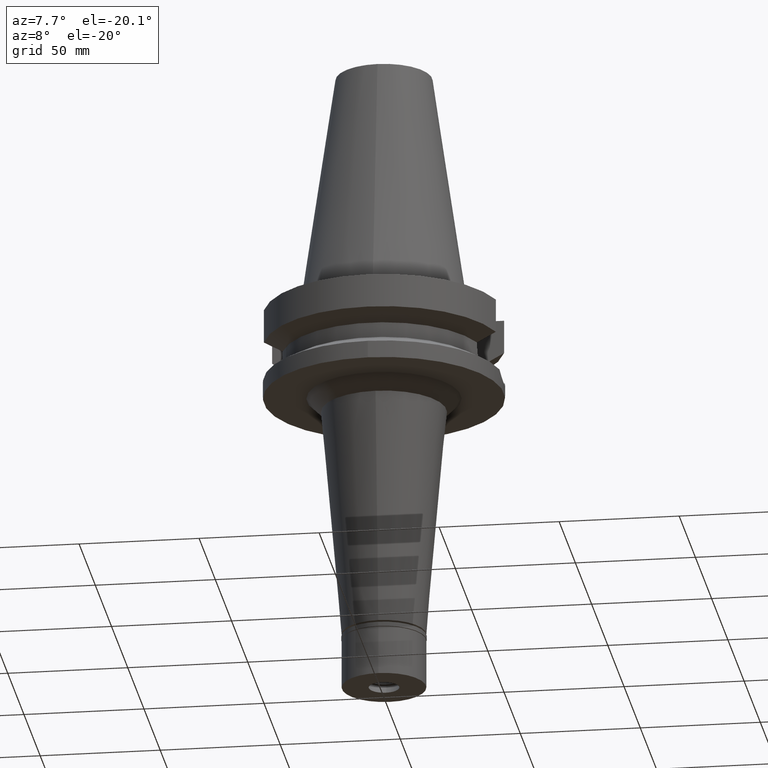
[diagram: clean part render]
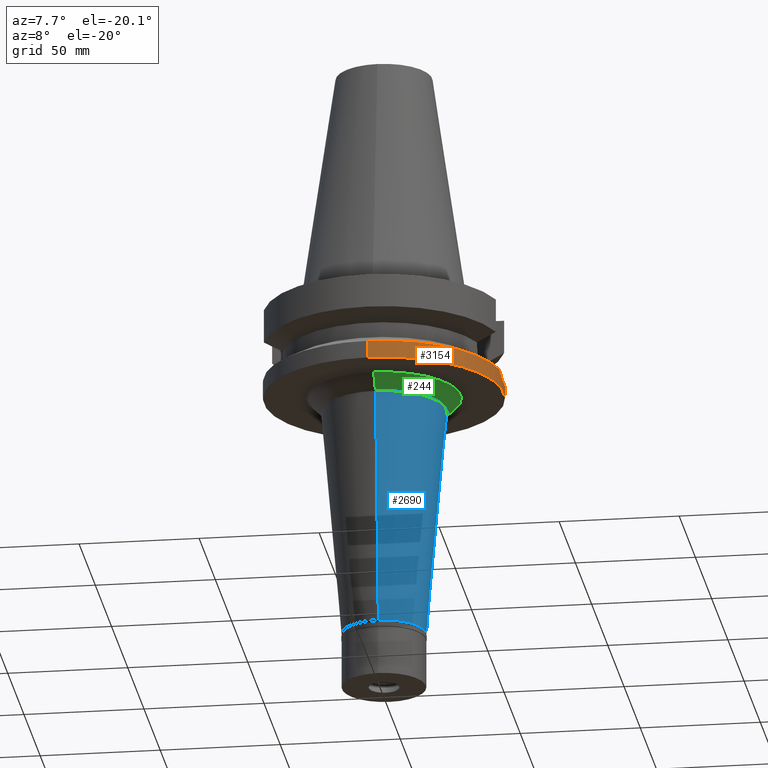
[diagram: same view with three faces highlighted in distinct colors, each labeled with its STEP entity id]
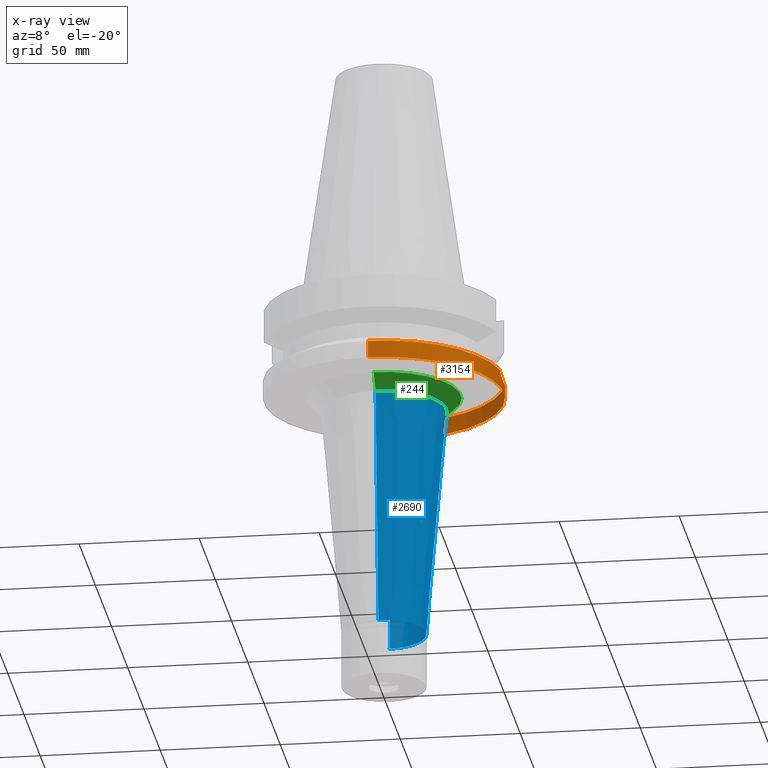
[diagram: x-ray of the same camera — body ghosted, the three highlighted faces saturated]
A machine part, auxiliary view with three faces highlighted in distinct colors.
The next image is the same camera in x-ray (body ghosted, the three faces saturated) — at least one of them is partly hidden behind the body in this view.
Their STEP definitions:

[orange] entity #3154 — the highlighted cylindrical surface (partial cylindrical patch) has radius 50 mm, axis along (0, 0, -1).
#23 = DIRECTION ( 'NONE',  ( 0.0000000000000000000, 0.0000000000000000000, -1.000000000000000000 ) ) ;
#179 = DIRECTION ( 'NONE',  ( 0.0000000000000000000, -1.000000000000000000, 0.0000000000000000000 ) ) ;
#183 = CARTESIAN_POINT ( 'NONE',  ( 49.79170874925391388, 4.559128567781159269, -33.16402800634921988 ) ) ;
#214 = CARTESIAN_POINT ( 'NONE',  ( 49.80628532616984927, 4.396934166540497735, -33.22451764730804769 ) ) ;
#223 = CARTESIAN_POINT ( 'NONE',  ( 0.0000000000000000000, 2.630602556908000006E-14, 114.8050000000000068 ) ) ;
#261 = CARTESIAN_POINT ( 'NONE',  ( 49.71771244289641345, -5.301720186373863442, -32.85659238552152317 ) ) ;
#279 = CARTESIAN_POINT ( 'NONE',  ( 49.86088866506666051, -3.802344464114768563, -33.45151161014790375 ) ) ;
#309 = CARTESIAN_POINT ( 'NONE',  ( 49.66531577332079905, -5.772453007953611603, -32.63570655782157814 ) ) ;
#327 = CARTESIAN_POINT ( 'NONE',  ( 0.0000000000000000000, 0.0000000000000000000, -30.73730776426999967 ) ) ;
#334 = CARTESIAN_POINT ( 'NONE',  ( 0.0000000000000000000, 50.00000000000000000, -30.73730776426999967 ) ) ;
#360 = AXIS2_PLACEMENT_3D ( 'NONE', #327, #853, #1836 ) ;
#377 = VERTEX_POINT ( 'NONE', #1843 ) ;
#378 = CARTESIAN_POINT ( 'NONE',  ( 0.0000000000000000000, 50.00000000000000000, -30.73730776426999967 ) ) ;
#380 = ORIENTED_EDGE ( 'NONE', *, *, #789, .T. ) ;
#412 = EDGE_CURVE ( 'NONE', #2607, #1108, #1620, .T. ) ;
#432 = AXIS2_PLACEMENT_3D ( 'NONE', #500, #23, #1290 ) ;
#440 = ORIENTED_EDGE ( 'NONE', *, *, #2488, .F. ) ;
#457 = CARTESIAN_POINT ( 'NONE',  ( 49.90869642992999644, 3.032807478770483733, -33.64331436784429741 ) ) ;
#500 = CARTESIAN_POINT ( 'NONE',  ( 0.0000000000000000000, 0.0000000000000000000, -30.73730776426999967 ) ) ;
#573 = EDGE_CURVE ( 'NONE', #659, #1108, #578, .T. ) ;
#578 = CIRCLE ( 'NONE', #1921, 50.00000000000000000 ) ;
#659 = VERTEX_POINT ( 'NONE', #921 ) ;
#669 = CARTESIAN_POINT ( 'NONE',  ( 49.79347438492523281, 4.539752812139063565, -33.17136368397431312 ) ) ;
#729 = CARTESIAN_POINT ( 'NONE',  ( 0.0000000000000000000, 2.630602556908000006E-14, -38.00000000000000000 ) ) ;
#732 = CARTESIAN_POINT ( 'NONE',  ( 49.98260905406998944, 1.500665618714346783, -33.93573820485861603 ) ) ;
#739 = ORIENTED_EDGE ( 'NONE', *, *, #2674, .T. ) ;
#765 = CARTESIAN_POINT ( 'NONE',  ( 49.78562820799655242, -4.625197376518185521, -33.13877319686051948 ) ) ;
#789 = EDGE_CURVE ( 'NONE', #2607, #1013, #2791, .T. ) ;
#836 = EDGE_LOOP ( 'NONE', ( #1416, #739, #1157, #1103, #380, #1376, #440 ) ) ;
#853 = DIRECTION ( 'NONE',  ( 0.0000000000000000000, 0.0000000000000000000, -1.000000000000000000 ) ) ;
#921 = CARTESIAN_POINT ( 'NONE',  ( 0.0000000000000000000, -50.00000000000000000, -38.00000000000000000 ) ) ;
#972 = CARTESIAN_POINT ( 'NONE',  ( 49.93043543703001319, 2.648726358657352620, -33.73005955321940519 ) ) ;
#1013 = VERTEX_POINT ( 'NONE', #1548 ) ;
#1018 = CARTESIAN_POINT ( 'NONE',  ( 49.78971523552941392, -4.580896940923952165, -33.15574469000484470 ) ) ;
#1032 = AXIS2_PLACEMENT_3D ( 'NONE', #223, #3160, #179 ) ;
#1036 = CARTESIAN_POINT ( 'NONE',  ( 50.00000025974998863, -0.7410656247097997529, -34.00000000000000000 ) ) ;
#1052 = CARTESIAN_POINT ( 'NONE',  ( 49.78849615496763192, -4.594160770994337284, -33.15068097424932603 ) ) ;
#1103 = ORIENTED_EDGE ( 'NONE', *, *, #412, .F. ) ;
#1106 = B_SPLINE_CURVE_WITH_KNOTS ( 'NONE', 3,
 ( #1451, #2910, #2024, #1765, #309, #261, #2283, #2436, #2970, #1259, #765, #1052, #1018, #1742, #2035, #279, #2249, #1276, #1036, #1782 ),
 .UNSPECIFIED., .F., .F.,
 ( 4, 2, 2, 2, 1, 1, 1, 1, 2, 2, 2, 4 ),
 ( 0.0000000000000000000, 0.2499999999999940048, 0.3749999999999915623, 0.4374999999999900635, 0.4687499999999891753, 0.4843749999999881206, 0.4921874999999883427, 0.4960937499999882871, 0.4980468749999882316, 0.4999999999999881206, 0.7499999999999941158, 1.000000000000000000 ),
 .UNSPECIFIED. ) ;
#1108 = VERTEX_POINT ( 'NONE', #3126 ) ;
#1157 = ORIENTED_EDGE ( 'NONE', *, *, #573, .T. ) ;
#1241 = CARTESIAN_POINT ( 'NONE',  ( 49.49360244393098895, 7.117060693421505491, -31.87766899446910784 ) ) ;
#1242 = B_SPLINE_CURVE_WITH_KNOTS ( 'NONE', 3,
 ( #2636, #2416, #732, #972, #457, #3135, #1713, #1473, #214, #2183, #3164, #669, #2401, #183, #2497, #1552, #1241, #2981, #2279 ),
 .UNSPECIFIED., .F., .F.,
 ( 4, 2, 2, 1, 1, 1, 1, 1, 2, 2, 2, 4 ),
 ( 0.0000000000000000000, 0.2500000000000517919, 0.3750000000000776046, 0.4375000000000906497, 0.4687500000000972555, 0.4843750000001001421, 0.4921875000001010858, 0.4960937500001011968, 0.4980468750001010303, 0.5000000000001008083, 0.7500000000000504041, 1.000000000000000000 ),
 .UNSPECIFIED. ) ;
#1259 = CARTESIAN_POINT ( 'NONE',  ( 49.77979861141319162, -4.687619708026090848, -33.11458520034723563 ) ) ;
#1276 = CARTESIAN_POINT ( 'NONE',  ( 49.98261131041457617, -1.500624885926772567, -33.93573978233060018 ) ) ;
#1287 = VECTOR ( 'NONE', #2152, 1000.000000000000000 ) ;
#1290 = DIRECTION ( 'NONE',  ( 0.0000000000000000000, 1.000000000000000000, 0.0000000000000000000 ) ) ;
#1376 = ORIENTED_EDGE ( 'NONE', *, *, #2787, .F. ) ;
#1416 = ORIENTED_EDGE ( 'NONE', *, *, #2148, .T. ) ;
#1451 = CARTESIAN_POINT ( 'NONE',  ( 49.26250064874000145, -8.556052234130000045, -30.73730776426999967 ) ) ;
#1473 = CARTESIAN_POINT ( 'NONE',  ( 49.82078931996938564, 4.230072290420488379, -33.28453423724099025 ) ) ;
#1548 = CARTESIAN_POINT ( 'NONE',  ( 49.26250064874000145, 8.556052234130000045, -30.73730776426999967 ) ) ;
#1552 = CARTESIAN_POINT ( 'NONE',  ( 49.66987082488097371, 5.762061219970735948, -32.66234491604767243 ) ) ;
#1620 = LINE ( 'NONE', #334, #1818 ) ;
#1713 = CARTESIAN_POINT ( 'NONE',  ( 49.84837068522750059, 3.895670753417038501, -33.39815263644801036 ) ) ;
#1742 = CARTESIAN_POINT ( 'NONE',  ( 49.79052572488866701, -4.572062755276847135, -33.15911172846503518 ) ) ;
#1765 = CARTESIAN_POINT ( 'NONE',  ( 49.62581554100451342, -6.100699782314205066, -32.46623685367629975 ) ) ;
#1782 = CARTESIAN_POINT ( 'NONE',  ( 50.00000025974999573, 1.774543828133999798E-14, -34.00000114470000057 ) ) ;
#1818 = VECTOR ( 'NONE', #1828, 1000.000000000000000 ) ;
#1828 = DIRECTION ( 'NONE',  ( 0.0000000000000000000, 2.152361642122000014E-14, -1.000000000000000000 ) ) ;
#1836 = DIRECTION ( 'NONE',  ( 0.9852500129747439050, -0.1711210446826074982, 0.0000000000000000000 ) ) ;
#1843 = CARTESIAN_POINT ( 'NONE',  ( 49.26250064874000145, -8.556052234130000045, -30.73730776426999967 ) ) ;
#1921 = AXIS2_PLACEMENT_3D ( 'NONE', #729, #2648, #2660 ) ;
#1957 = CARTESIAN_POINT ( 'NONE',  ( 0.0000000000000000000, -50.00000000000000000, -30.73730776426999967 ) ) ;
#2024 = CARTESIAN_POINT ( 'NONE',  ( 49.49360748625827000, -7.117022365596038291, -31.87769826651205918 ) ) ;
#2035 = CARTESIAN_POINT ( 'NONE',  ( 49.79078946305826747, -4.569185635576265447, -33.16020745300120609 ) ) ;
#2048 = CARTESIAN_POINT ( 'NONE',  ( 50.00000025974999573, 1.774543828133999798E-14, -34.00000114470000057 ) ) ;
#2132 = FACE_OUTER_BOUND ( 'NONE', #836, .T. ) ;
#2138 = LINE ( 'NONE', #1957, #1287 ) ;
#2148 = EDGE_CURVE ( 'NONE', #377, #2919, #2434, .T. ) ;
#2152 = DIRECTION ( 'NONE',  ( 0.0000000000000000000, -2.250196262218000018E-14, -1.000000000000000000 ) ) ;
#2183 = CARTESIAN_POINT ( 'NONE',  ( 49.79885500147747734, 4.480269389575964212, -33.19370440294162705 ) ) ;
#2249 = CARTESIAN_POINT ( 'NONE',  ( 49.91305551307291921, -3.031270826393268170, -33.66153124149043663 ) ) ;
#2279 = CARTESIAN_POINT ( 'NONE',  ( 49.26250064874000145, 8.556052234130000045, -30.73730776426999967 ) ) ;
#2283 = CARTESIAN_POINT ( 'NONE',  ( 49.73403571960515990, -5.148397096296423392, -32.92466732349263481 ) ) ;
#2298 = VERTEX_POINT ( 'NONE', #2048 ) ;
#2401 = CARTESIAN_POINT ( 'NONE',  ( 49.79239168047004682, 4.551645640507981483, -33.16686574698019285 ) ) ;
#2416 = CARTESIAN_POINT ( 'NONE',  ( 50.00000025975000995, 0.7410749815705011123, -33.99999999999998579 ) ) ;
#2434 = CIRCLE ( 'NONE', #360, 50.00000000000000000 ) ;
#2436 = CARTESIAN_POINT ( 'NONE',  ( 49.75680721494361336, -4.924372199907261383, -33.01927248178253649 ) ) ;
#2488 = EDGE_CURVE ( 'NONE', #377, #2298, #1106, .T. ) ;
#2497 = CARTESIAN_POINT ( 'NONE',  ( 49.73972721060897584, 5.127761864439840167, -32.94800215654309028 ) ) ;
#2607 = VERTEX_POINT ( 'NONE', #378 ) ;
#2636 = CARTESIAN_POINT ( 'NONE',  ( 50.00000025974999573, 1.774543828133999798E-14, -34.00000114470000057 ) ) ;
#2648 = DIRECTION ( 'NONE',  ( 0.0000000000000000000, 0.0000000000000000000, 1.000000000000000000 ) ) ;
#2660 = DIRECTION ( 'NONE',  ( 0.0000000000000000000, -1.000000000000000000, 0.0000000000000000000 ) ) ;
#2674 = EDGE_CURVE ( 'NONE', #2919, #659, #2138, .T. ) ;
#2787 = EDGE_CURVE ( 'NONE', #2298, #1013, #1242, .T. ) ;
#2791 = CIRCLE ( 'NONE', #432, 50.00000000000000000 ) ;
#2910 = CARTESIAN_POINT ( 'NONE',  ( 49.38719230603077648, -7.838125007824067403, -31.37801139031540387 ) ) ;
#2919 = VERTEX_POINT ( 'NONE', #2999 ) ;
#2970 = CARTESIAN_POINT ( 'NONE',  ( 49.76776460768166288, -4.813848196731055573, -33.06469792034259569 ) ) ;
#2981 = CARTESIAN_POINT ( 'NONE',  ( 49.38719044870897790, 7.838135701628201168, -31.37800184678672721 ) ) ;
#2999 = CARTESIAN_POINT ( 'NONE',  ( 0.0000000000000000000, -50.00000000000000000, -30.73730776426999967 ) ) ;
#3126 = CARTESIAN_POINT ( 'NONE',  ( 0.0000000000000000000, 50.00000000000000000, -38.00000000000000000 ) ) ;
#3135 = CARTESIAN_POINT ( 'NONE',  ( 49.86956621714999471, 3.608177968282533232, -33.48463145065421998 ) ) ;
#3154 = ADVANCED_FACE ( 'NONE', ( #2132 ), #3170, .T. ) ;
#3160 = DIRECTION ( 'NONE',  ( 0.0000000000000000000, 0.0000000000000000000, -1.000000000000000000 ) ) ;
#3164 = CARTESIAN_POINT ( 'NONE',  ( 49.79509525718312801, 4.521911686845223599, -33.17809616899782554 ) ) ;
#3170 = CYLINDRICAL_SURFACE ( 'NONE', #1032, 50.00000000000000000 ) ;

[blue] entity #2690 — the highlighted conical surface has half-angle 5 deg.
#87 = DIRECTION ( 'NONE',  ( 0.0000000000000000000, 0.0000000000000000000, 1.000000000000000000 ) ) ;
#306 = VECTOR ( 'NONE', #705, 1000.000000000000000 ) ;
#323 = CARTESIAN_POINT ( 'NONE',  ( 0.0000000000000000000, -26.04764242647999950, -44.00000000000000000 ) ) ;
#383 = EDGE_LOOP ( 'NONE', ( #3082, #1994, #520, #2139 ) ) ;
#387 = CARTESIAN_POINT ( 'NONE',  ( 0.0000000000000000000, -17.50000000000000000, -141.6999999999999886 ) ) ;
#520 = ORIENTED_EDGE ( 'NONE', *, *, #2260, .T. ) ;
#586 = CARTESIAN_POINT ( 'NONE',  ( 0.0000000000000000000, 0.0000000000000000000, -141.6999999999999886 ) ) ;
#679 = VERTEX_POINT ( 'NONE', #942 ) ;
#705 = DIRECTION ( 'NONE',  ( 0.0000000000000000000, 0.08715574274765398866, -0.9961946980917458783 ) ) ;
#858 = CARTESIAN_POINT ( 'NONE',  ( 0.0000000000000000000, 0.0000000000000000000, -44.00000000000000000 ) ) ;
#874 = DIRECTION ( 'NONE',  ( 0.0000000000000000000, -1.000000000000000000, 0.0000000000000000000 ) ) ;
#942 = CARTESIAN_POINT ( 'NONE',  ( 0.0000000000000000000, -26.04764242647999950, -44.00000000000000000 ) ) ;
#1078 = CARTESIAN_POINT ( 'NONE',  ( 0.0000000000000000000, 26.04764242647999950, -44.00000000000000000 ) ) ;
#1182 = DIRECTION ( 'NONE',  ( 0.0000000000000000000, 0.0000000000000000000, 1.000000000000000000 ) ) ;
#1185 = AXIS2_PLACEMENT_3D ( 'NONE', #1445, #1182, #2891 ) ;
#1372 = CARTESIAN_POINT ( 'NONE',  ( 0.0000000000000000000, 26.04764242647999950, -44.00000000000000000 ) ) ;
#1393 = CONICAL_SURFACE ( 'NONE', #1185, 21.77382121324000153, 0.08726646259969973729 ) ;
#1445 = CARTESIAN_POINT ( 'NONE',  ( 0.0000000000000000000, 0.0000000000000000000, -92.85000000000000853 ) ) ;
#1482 = VECTOR ( 'NONE', #1679, 1000.000000000000000 ) ;
#1557 = LINE ( 'NONE', #323, #306 ) ;
#1679 = DIRECTION ( 'NONE',  ( 0.0000000000000000000, -0.08715574274765398866, -0.9961946980917458783 ) ) ;
#1682 = VERTEX_POINT ( 'NONE', #2346 ) ;
#1888 = EDGE_CURVE ( 'NONE', #3117, #1682, #3159, .T. ) ;
#1941 = VERTEX_POINT ( 'NONE', #387 ) ;
#1943 = FACE_OUTER_BOUND ( 'NONE', #383, .T. ) ;
#1994 = ORIENTED_EDGE ( 'NONE', *, *, #2427, .T. ) ;
#2139 = ORIENTED_EDGE ( 'NONE', *, *, #1888, .F. ) ;
#2260 = EDGE_CURVE ( 'NONE', #1941, #1682, #2469, .T. ) ;
#2346 = CARTESIAN_POINT ( 'NONE',  ( 0.0000000000000000000, 17.50000000000000000, -141.6999999999999886 ) ) ;
#2427 = EDGE_CURVE ( 'NONE', #679, #1941, #1557, .T. ) ;
#2469 = CIRCLE ( 'NONE', #2885, 17.50000000000000000 ) ;
#2602 = DIRECTION ( 'NONE',  ( 0.0000000000000000000, 0.0000000000000000000, 1.000000000000000000 ) ) ;
#2690 = ADVANCED_FACE ( 'NONE', ( #1943 ), #1393, .T. ) ;
#2834 = CIRCLE ( 'NONE', #3039, 26.04764242647999950 ) ;
#2885 = AXIS2_PLACEMENT_3D ( 'NONE', #586, #2602, #3081 ) ;
#2891 = DIRECTION ( 'NONE',  ( 0.0000000000000000000, 1.000000000000000000, 0.0000000000000000000 ) ) ;
#3039 = AXIS2_PLACEMENT_3D ( 'NONE', #858, #87, #874 ) ;
#3081 = DIRECTION ( 'NONE',  ( 0.0000000000000000000, -1.000000000000000000, 0.0000000000000000000 ) ) ;
#3082 = ORIENTED_EDGE ( 'NONE', *, *, #3093, .F. ) ;
#3093 = EDGE_CURVE ( 'NONE', #679, #3117, #2834, .T. ) ;
#3117 = VERTEX_POINT ( 'NONE', #1078 ) ;
#3159 = LINE ( 'NONE', #1372, #1482 ) ;

[green] entity #244 — the highlighted conical surface has half-angle 45 deg.
#21 = EDGE_CURVE ( 'NONE', #2393, #679, #1169, .T. ) ;
#46 = EDGE_LOOP ( 'NONE', ( #2584, #2861, #2821, #1134 ) ) ;
#87 = DIRECTION ( 'NONE',  ( 0.0000000000000000000, 0.0000000000000000000, 1.000000000000000000 ) ) ;
#185 = DIRECTION ( 'NONE',  ( 0.0000000000000000000, 0.7071067811864976127, -0.7071067811865975328 ) ) ;
#244 = ADVANCED_FACE ( 'NONE', ( #2740 ), #2286, .T. ) ;
#530 = DIRECTION ( 'NONE',  ( 0.0000000000000000000, 1.000000000000000000, 0.0000000000000000000 ) ) ;
#539 = CARTESIAN_POINT ( 'NONE',  ( 0.0000000000000000000, 0.0000000000000000000, -41.00000000000000000 ) ) ;
#541 = CARTESIAN_POINT ( 'NONE',  ( 0.0000000000000000000, -32.04764242647999595, -38.00000000000000000 ) ) ;
#679 = VERTEX_POINT ( 'NONE', #942 ) ;
#812 = CARTESIAN_POINT ( 'NONE',  ( 0.0000000000000000000, 32.04764242647999595, -38.00000000000000000 ) ) ;
#858 = CARTESIAN_POINT ( 'NONE',  ( 0.0000000000000000000, 0.0000000000000000000, -44.00000000000000000 ) ) ;
#874 = DIRECTION ( 'NONE',  ( 0.0000000000000000000, -1.000000000000000000, 0.0000000000000000000 ) ) ;
#886 = AXIS2_PLACEMENT_3D ( 'NONE', #2683, #1234, #530 ) ;
#900 = AXIS2_PLACEMENT_3D ( 'NONE', #539, #1487, #2468 ) ;
#922 = DIRECTION ( 'NONE',  ( 0.0000000000000000000, -0.7071067811864976127, -0.7071067811865975328 ) ) ;
#942 = CARTESIAN_POINT ( 'NONE',  ( 0.0000000000000000000, -26.04764242647999950, -44.00000000000000000 ) ) ;
#1078 = CARTESIAN_POINT ( 'NONE',  ( 0.0000000000000000000, 26.04764242647999950, -44.00000000000000000 ) ) ;
#1134 = ORIENTED_EDGE ( 'NONE', *, *, #1265, .F. ) ;
#1169 = LINE ( 'NONE', #2641, #2131 ) ;
#1225 = VECTOR ( 'NONE', #922, 1000.000000000000114 ) ;
#1234 = DIRECTION ( 'NONE',  ( 0.0000000000000000000, 0.0000000000000000000, -1.000000000000000000 ) ) ;
#1265 = EDGE_CURVE ( 'NONE', #2897, #3117, #1694, .T. ) ;
#1487 = DIRECTION ( 'NONE',  ( 0.0000000000000000000, 0.0000000000000000000, 1.000000000000000000 ) ) ;
#1547 = CIRCLE ( 'NONE', #886, 32.04764242647999595 ) ;
#1694 = LINE ( 'NONE', #1892, #1225 ) ;
#1892 = CARTESIAN_POINT ( 'NONE',  ( 0.0000000000000000000, 32.04764242647999595, -38.00000000000000000 ) ) ;
#1971 = EDGE_CURVE ( 'NONE', #2897, #2393, #1547, .T. ) ;
#2131 = VECTOR ( 'NONE', #185, 1000.000000000000114 ) ;
#2286 = CONICAL_SURFACE ( 'NONE', #900, 29.04764242647999950, 0.7853981633972997312 ) ;
#2393 = VERTEX_POINT ( 'NONE', #541 ) ;
#2468 = DIRECTION ( 'NONE',  ( 0.0000000000000000000, 1.000000000000000000, 0.0000000000000000000 ) ) ;
#2584 = ORIENTED_EDGE ( 'NONE', *, *, #1971, .T. ) ;
#2641 = CARTESIAN_POINT ( 'NONE',  ( 0.0000000000000000000, -32.04764242647999595, -38.00000000000000000 ) ) ;
#2683 = CARTESIAN_POINT ( 'NONE',  ( 0.0000000000000000000, 0.0000000000000000000, -38.00000000000000000 ) ) ;
#2740 = FACE_OUTER_BOUND ( 'NONE', #46, .T. ) ;
#2821 = ORIENTED_EDGE ( 'NONE', *, *, #3093, .T. ) ;
#2834 = CIRCLE ( 'NONE', #3039, 26.04764242647999950 ) ;
#2861 = ORIENTED_EDGE ( 'NONE', *, *, #21, .T. ) ;
#2897 = VERTEX_POINT ( 'NONE', #812 ) ;
#3039 = AXIS2_PLACEMENT_3D ( 'NONE', #858, #87, #874 ) ;
#3093 = EDGE_CURVE ( 'NONE', #679, #3117, #2834, .T. ) ;
#3117 = VERTEX_POINT ( 'NONE', #1078 ) ;